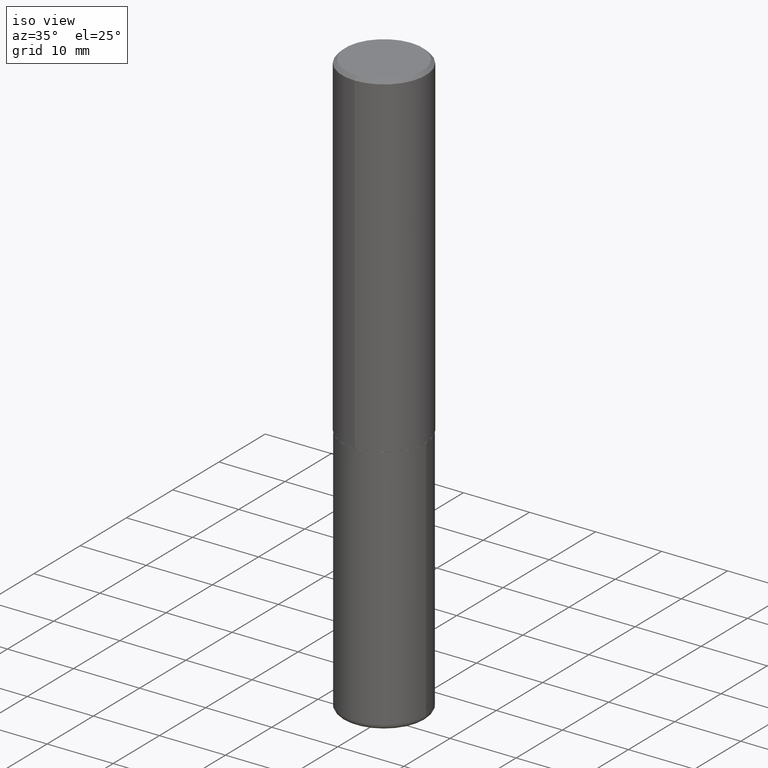
[diagram: clean part render]
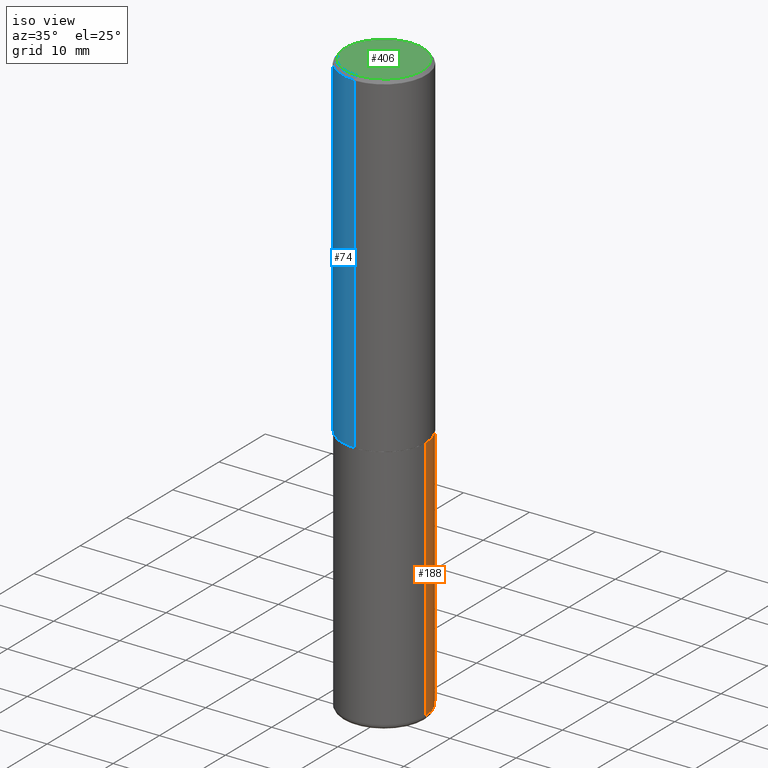
[diagram: same view with three faces highlighted in distinct colors, each labeled with its STEP entity id]
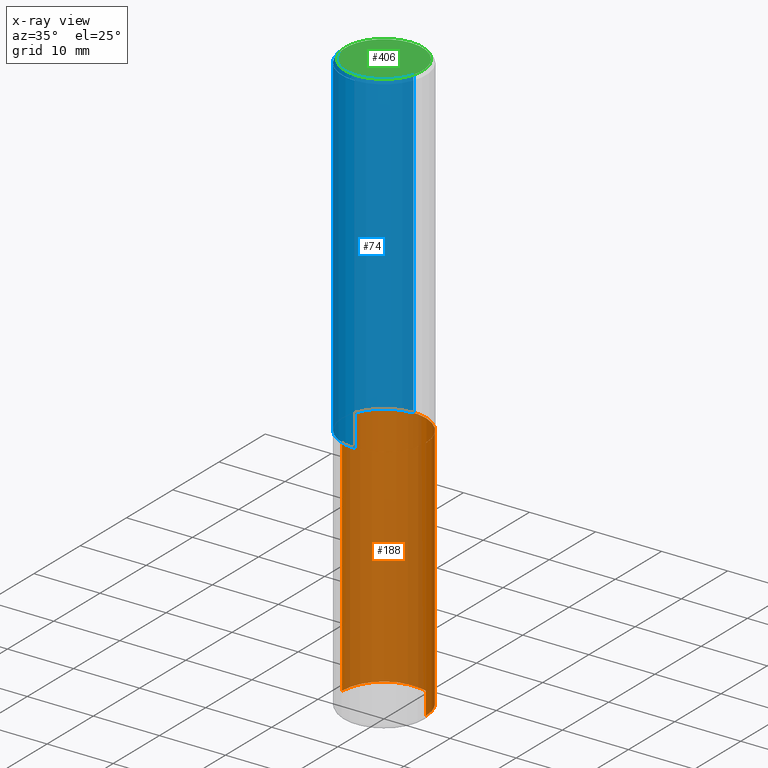
[diagram: x-ray of the same camera — body ghosted, the three highlighted faces saturated]
A machine part, iso view with three faces highlighted in distinct colors.
The next image is the same camera in x-ray (body ghosted, the three faces saturated) — at least one of them is partly hidden behind the body in this view.
Their STEP definitions:

[orange] entity #188 — the highlighted cylindrical surface (partial cylindrical patch) has radius 6.35 mm, axis along (-0, 0, 1).
#19 = CARTESIAN_POINT ( 'NONE',  ( -0.2499999999999998612, -1.033908340638546551E-14, -3.469999999999999751 ) ) ;
#20 = CARTESIAN_POINT ( 'NONE',  ( 0.2500000000000000000, -8.728703347107857054E-15, -2.000000000000000000 ) ) ;
#23 = EDGE_CURVE ( 'NONE', #88, #288, #275, .T. ) ;
#26 = EDGE_LOOP ( 'NONE', ( #282, #285, #302, #393 ) ) ;
#28 = AXIS2_PLACEMENT_3D ( 'NONE', #118, #78, #247 ) ;
#51 = DIRECTION ( 'NONE',  ( 1.000000000000000000, -6.982962677686262766E-15, 0.000000000000000000 ) ) ;
#73 = AXIS2_PLACEMENT_3D ( 'NONE', #332, #173, #392 ) ;
#76 = EDGE_CURVE ( 'NONE', #133, #288, #400, .T. ) ;
#77 = CYLINDRICAL_SURFACE ( 'NONE', #28, 0.2500000000000000000 ) ;
#78 = DIRECTION ( 'NONE',  ( -2.445468806185136597E-29, 3.491481338843145583E-15, 1.000000000000000000 ) ) ;
#82 = FACE_OUTER_BOUND ( 'NONE', #26, .T. ) ;
#88 = VERTEX_POINT ( 'NONE', #20 ) ;
#109 = EDGE_CURVE ( 'NONE', #222, #88, #376, .T. ) ;
#118 = CARTESIAN_POINT ( 'NONE',  ( 0.000000000000000000, 0.000000000000000000, 0.000000000000000000 ) ) ;
#133 = VERTEX_POINT ( 'NONE', #19 ) ;
#158 = CARTESIAN_POINT ( 'NONE',  ( 0.2500000000000000000, -1.745740669421566678E-15, 1.219044193948983948E-29 ) ) ;
#166 = AXIS2_PLACEMENT_3D ( 'NONE', #412, #186, #51 ) ;
#173 = DIRECTION ( 'NONE',  ( -2.445468806185136597E-29, 3.491481338843145583E-15, 1.000000000000000000 ) ) ;
#186 = DIRECTION ( 'NONE',  ( -2.445468806185136597E-29, 3.491481338843145583E-15, 1.000000000000000000 ) ) ;
#188 = ADVANCED_FACE ( 'NONE', ( #82 ), #77, .T. ) ;
#203 = CARTESIAN_POINT ( 'NONE',  ( -0.2500000000000000000, 1.776356839400250465E-15, -1.229733772563726445E-29 ) ) ;
#212 = CARTESIAN_POINT ( 'NONE',  ( 0.2499999999999998612, -1.386118091520728107E-14, -3.469999999999999751 ) ) ;
#213 = VECTOR ( 'NONE', #371, 39.37007874015748143 ) ;
#217 = EDGE_CURVE ( 'NONE', #222, #133, #336, .T. ) ;
#222 = VERTEX_POINT ( 'NONE', #212 ) ;
#247 = DIRECTION ( 'NONE',  ( 1.000000000000000000, -6.982962677686266711E-15, 4.876176775795935793E-29 ) ) ;
#264 = CARTESIAN_POINT ( 'NONE',  ( -0.2500000000000000000, -7.772844622335752710E-15, -2.000000000000000000 ) ) ;
#275 = CIRCLE ( 'NONE', #73, 0.2500000000000000000 ) ;
#282 = ORIENTED_EDGE ( 'NONE', *, *, #217, .T. ) ;
#285 = ORIENTED_EDGE ( 'NONE', *, *, #76, .T. ) ;
#288 = VERTEX_POINT ( 'NONE', #264 ) ;
#302 = ORIENTED_EDGE ( 'NONE', *, *, #23, .F. ) ;
#324 = DIRECTION ( 'NONE',  ( -2.445468806185136877E-29, 3.491481338843145188E-15, 1.000000000000000000 ) ) ;
#332 = CARTESIAN_POINT ( 'NONE',  ( 4.890937612370273194E-29, -6.982962677686291165E-15, -2.000000000000000000 ) ) ;
#336 = CIRCLE ( 'NONE', #166, 0.2500000000000000000 ) ;
#371 = DIRECTION ( 'NONE',  ( -2.445468806185136877E-29, 3.491481338843145188E-15, 1.000000000000000000 ) ) ;
#376 = LINE ( 'NONE', #158, #213 ) ;
#392 = DIRECTION ( 'NONE',  ( 1.000000000000000000, -6.982962677686266711E-15, 0.000000000000000000 ) ) ;
#393 = ORIENTED_EDGE ( 'NONE', *, *, #109, .F. ) ;
#400 = LINE ( 'NONE', #203, #403 ) ;
#403 = VECTOR ( 'NONE', #324, 39.37007874015748143 ) ;
#412 = CARTESIAN_POINT ( 'NONE',  ( 8.485776757462424574E-29, -1.211544024578571439E-14, -3.469999999999999751 ) ) ;

[blue] entity #74 — the highlighted cylindrical surface (partial cylindrical patch) has radius 6.35 mm, axis along (-0, 0, 1).
#6 = AXIS2_PLACEMENT_3D ( 'NONE', #338, #182, #274 ) ;
#9 = CYLINDRICAL_SURFACE ( 'NONE', #323, 0.2500000000000001110 ) ;
#13 = DIRECTION ( 'NONE',  ( -6.982962677686265133E-15, -1.000000000000000000, 3.500180241882336472E-15 ) ) ;
#16 = CIRCLE ( 'NONE', #259, 0.2500000000000000555 ) ;
#37 = ORIENTED_EDGE ( 'NONE', *, *, #343, .T. ) ;
#44 = DIRECTION ( 'NONE',  ( -2.444078991372175563E-29, 3.493471632758652550E-15, 1.000000000000000000 ) ) ;
#69 = DIRECTION ( 'NONE',  ( -6.982962677686266711E-15, -1.000000000000000000, 3.493471632758652550E-15 ) ) ;
#71 = FACE_OUTER_BOUND ( 'NONE', #123, .T. ) ;
#74 = ADVANCED_FACE ( 'NONE', ( #71 ), #9, .T. ) ;
#81 = EDGE_CURVE ( 'NONE', #194, #330, #16, .T. ) ;
#96 = VECTOR ( 'NONE', #151, 39.37007874015748143 ) ;
#108 = CARTESIAN_POINT ( 'NONE',  ( 4.888157982744373443E-31, -6.986943265517335816E-17, -0.02000000000000009062 ) ) ;
#121 = LINE ( 'NONE', #254, #96 ) ;
#123 = EDGE_LOOP ( 'NONE', ( #409, #379, #37, #322 ) ) ;
#132 = EDGE_CURVE ( 'NONE', #368, #292, #389, .T. ) ;
#151 = DIRECTION ( 'NONE',  ( -2.444078991372175563E-29, 3.493471632758652550E-15, 1.000000000000000000 ) ) ;
#182 = DIRECTION ( 'NONE',  ( -2.444078991372175563E-29, 3.493471632758652550E-15, 1.000000000000000000 ) ) ;
#192 = CARTESIAN_POINT ( 'NONE',  ( -1.715124499442882496E-15, -0.2500000000000001110, -0.01999999999999921632 ) ) ;
#193 = DIRECTION ( 'NONE',  ( -2.444078991372175563E-29, 3.493471632758652550E-15, 1.000000000000000000 ) ) ;
#194 = VERTEX_POINT ( 'NONE', #341 ) ;
#195 = CARTESIAN_POINT ( 'NONE',  ( 1.776356839400276103E-15, 0.2499999999999932832, -1.999000000000000776 ) ) ;
#227 = LINE ( 'NONE', #349, #305 ) ;
#251 = EDGE_CURVE ( 'NONE', #368, #194, #121, .T. ) ;
#254 = CARTESIAN_POINT ( 'NONE',  ( 1.776356839400251254E-15, 0.2500000000000001110, -8.733679081896635319E-16 ) ) ;
#259 = AXIS2_PLACEMENT_3D ( 'NONE', #108, #44, #13 ) ;
#273 = CARTESIAN_POINT ( 'NONE',  ( 0.000000000000000000, 0.000000000000000000, 0.000000000000000000 ) ) ;
#274 = DIRECTION ( 'NONE',  ( -6.982962677686265922E-15, -1.000000000000000000, 3.278217592397112312E-15 ) ) ;
#286 = CARTESIAN_POINT ( 'NONE',  ( -1.745740669421519543E-15, -0.2500000000000072720, -1.998999999999999000 ) ) ;
#292 = VERTEX_POINT ( 'NONE', #286 ) ;
#305 = VECTOR ( 'NONE', #193, 39.37007874015748143 ) ;
#322 = ORIENTED_EDGE ( 'NONE', *, *, #81, .F. ) ;
#323 = AXIS2_PLACEMENT_3D ( 'NONE', #273, #357, #69 ) ;
#330 = VERTEX_POINT ( 'NONE', #192 ) ;
#338 = CARTESIAN_POINT ( 'NONE',  ( 4.885713903752978284E-29, -6.983449793884546288E-15, -1.998999999999999888 ) ) ;
#341 = CARTESIAN_POINT ( 'NONE',  ( 1.745740669421567269E-15, 0.2499999999999999722, -0.02000000000000096492 ) ) ;
#343 = EDGE_CURVE ( 'NONE', #292, #330, #227, .T. ) ;
#349 = CARTESIAN_POINT ( 'NONE',  ( -1.745740669421567467E-15, -0.2500000000000001110, 8.733679081896635319E-16 ) ) ;
#357 = DIRECTION ( 'NONE',  ( -2.444078991372175563E-29, 3.493471632758652550E-15, 1.000000000000000000 ) ) ;
#368 = VERTEX_POINT ( 'NONE', #195 ) ;
#379 = ORIENTED_EDGE ( 'NONE', *, *, #132, .T. ) ;
#389 = CIRCLE ( 'NONE', #6, 0.2500000000000002776 ) ;
#409 = ORIENTED_EDGE ( 'NONE', *, *, #251, .F. ) ;

[green] entity #406 — the highlighted planar face has unit normal (0, -0, -1).
#2 = DIRECTION ( 'NONE',  ( 2.444078991372175283E-29, -3.493471632758652550E-15, -1.000000000000000000 ) ) ;
#24 = DIRECTION ( 'NONE',  ( -6.982962677686265922E-15, -1.000000000000000000, 3.493471632758652550E-15 ) ) ;
#36 = PLANE ( 'NONE',  #318 ) ;
#86 = VERTEX_POINT ( 'NONE', #142 ) ;
#125 = EDGE_CURVE ( 'NONE', #86, #261, #176, .T. ) ;
#134 = DIRECTION ( 'NONE',  ( 6.982962677686265922E-15, 1.000000000000000000, -3.493471632758652550E-15 ) ) ;
#142 = CARTESIAN_POINT ( 'NONE',  ( -1.646519519465166376E-15, -0.2299999999999997047, 1.115557654912385711E-15 ) ) ;
#176 = CIRCLE ( 'NONE', #328, 0.2299999999999997047 ) ;
#181 = EDGE_LOOP ( 'NONE', ( #414, #229 ) ) ;
#189 = CARTESIAN_POINT ( 'NONE',  ( 1.606081415867839095E-15, 0.2299999999999997047, -6.474688858455407103E-16 ) ) ;
#191 = AXIS2_PLACEMENT_3D ( 'NONE', #390, #258, #290 ) ;
#229 = ORIENTED_EDGE ( 'NONE', *, *, #125, .T. ) ;
#252 = DIRECTION ( 'NONE',  ( -2.444078991372175563E-29, 3.493471632758652550E-15, 1.000000000000000000 ) ) ;
#258 = DIRECTION ( 'NONE',  ( -2.444078991372175563E-29, 3.493471632758652550E-15, 1.000000000000000000 ) ) ;
#261 = VERTEX_POINT ( 'NONE', #402 ) ;
#276 = EDGE_CURVE ( 'NONE', #261, #86, #404, .T. ) ;
#290 = DIRECTION ( 'NONE',  ( -6.982962677686265922E-15, -1.000000000000000000, 3.493471632758652550E-15 ) ) ;
#309 = CARTESIAN_POINT ( 'NONE',  ( -7.626972843823584403E-45, 1.090169890898625670E-30, 3.120591793778966343E-16 ) ) ;
#318 = AXIS2_PLACEMENT_3D ( 'NONE', #189, #2, #134 ) ;
#328 = AXIS2_PLACEMENT_3D ( 'NONE', #309, #252, #24 ) ;
#353 = FACE_OUTER_BOUND ( 'NONE', #181, .T. ) ;
#390 = CARTESIAN_POINT ( 'NONE',  ( -7.626972843823584403E-45, 1.090169890898625670E-30, 3.120591793778966343E-16 ) ) ;
#402 = CARTESIAN_POINT ( 'NONE',  ( 1.675911042644703182E-15, 0.2299999999999997047, -4.914392961565924424E-16 ) ) ;
#404 = CIRCLE ( 'NONE', #191, 0.2299999999999997047 ) ;
#406 = ADVANCED_FACE ( 'NONE', ( #353 ), #36, .F. ) ;
#414 = ORIENTED_EDGE ( 'NONE', *, *, #276, .T. ) ;